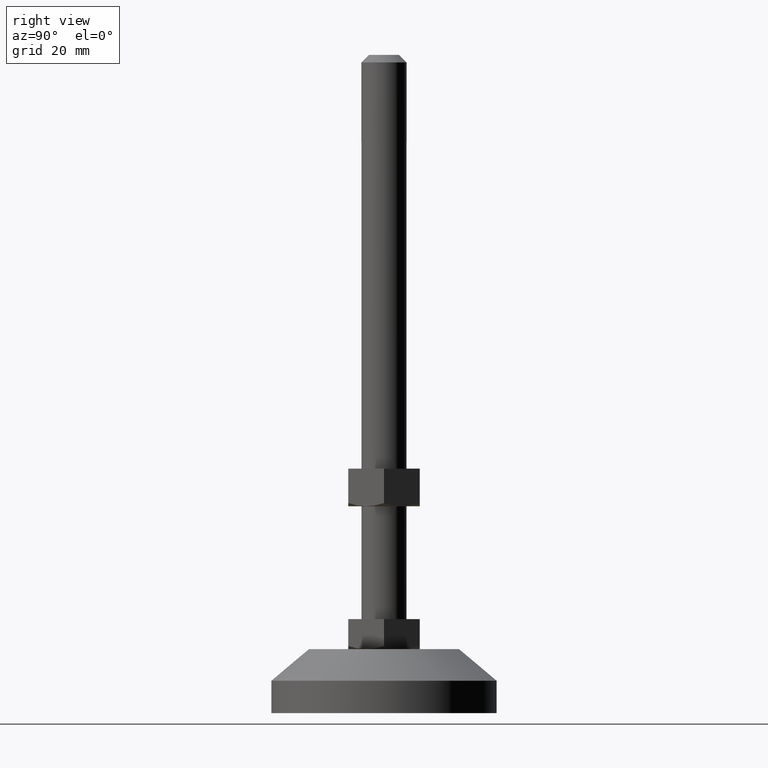
[diagram: clean part render]
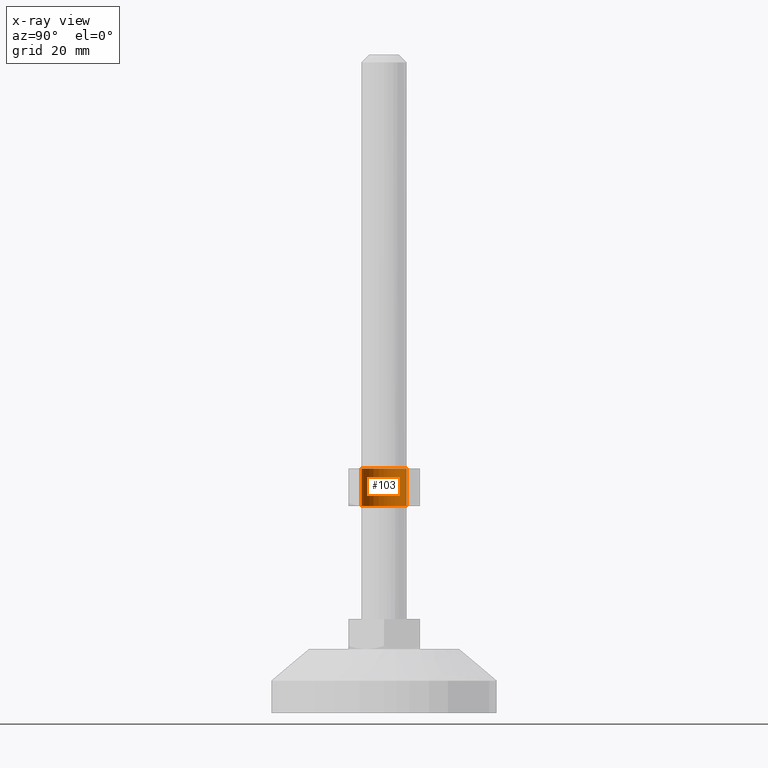
[diagram: x-ray — body ghosted, one internal face saturated and labeled with its STEP entity id]
A machine part, right view, then the same camera in x-ray: the body is ghosted and one INTERNAL B-rep face — a face not visible from any outside direction — is saturated and labeled: STEP entity #103.
In plain terms, the highlighted face is a freeform B-spline surface patch.
Its self-contained STEP definition (entity closure, byte-faithful):
#5=CARTESIAN_POINT('',(-0.470754574367073,-5.981504002398766,65.250000000000000));
#6=CARTESIAN_POINT('',(-6.452258576765839,-5.510749428031692,65.250000000000000));
#7=CARTESIAN_POINT('',(-5.981504002398766,0.470754574367073,65.250000000000000));
#8=CARTESIAN_POINT('',(-5.510749428031692,6.452258576765839,65.250000000000000));
#9=CARTESIAN_POINT('',(0.470754574367073,5.981504002398766,65.250000000000000));
#10=CARTESIAN_POINT('',(-0.470754574367073,-5.981504002398766,54.743749999999991));
#11=CARTESIAN_POINT('',(-6.452258576765839,-5.510749428031692,54.743749999999999));
#12=CARTESIAN_POINT('',(-5.981504002398766,0.470754574367073,54.743749999999991));
#13=CARTESIAN_POINT('',(-5.510749428031692,6.452258576765839,54.743749999999999));
#14=CARTESIAN_POINT('',(0.470754574367073,5.981504002398766,54.743749999999991));
#22=(BOUNDED_SURFACE()B_SPLINE_SURFACE(2,1,((#5,#10),(#6,#11),(#7,#12),(#8,#13),(#9,#14)),.UNSPECIFIED.,.F.,.F.,.U.)B_SPLINE_SURFACE_WITH_KNOTS((3,2,3),(2,2),(0.0,9.941125496954280,19.882250993908560),(0.0,10.506250000000010),.UNSPECIFIED.)GEOMETRIC_REPRESENTATION_ITEM()RATIONAL_B_SPLINE_SURFACE(((1.0,1.0),(0.707106781186548,0.707106781186548),(1.0,1.0),(0.707106781186548,0.707106781186548),(1.0,1.0)))REPRESENTATION_ITEM('')SURFACE());
#23=CARTESIAN_POINT('',(-6.0,0.0,65.0));
#24=VERTEX_POINT('',#23);
#25=CARTESIAN_POINT('',(-0.470754574491639,-5.981504002388963,65.0));
#26=VERTEX_POINT('',#25);
#27=CARTESIAN_POINT('',(-6.0,0.0,65.0));
#28=CARTESIAN_POINT('',(-6.0,-5.546342949833379,65.0));
#29=CARTESIAN_POINT('',(-0.470754574491639,-5.981504002388966,65.000000000000014));
#37=(BOUNDED_CURVE()B_SPLINE_CURVE(2,(#27,#28,#29),.UNSPECIFIED.,.F.,.U.)B_SPLINE_CURVE_WITH_KNOTS((3,3),(0.0,0.236331300629197),.UNSPECIFIED.)CURVE()GEOMETRIC_REPRESENTATION_ITEM()RATIONAL_B_SPLINE_CURVE((1.0,0.723120658609379,0.969723356164365))REPRESENTATION_ITEM(''));
#38=EDGE_CURVE('',#24,#26,#37,.T.);
#39=ORIENTED_EDGE('',*,*,#38,.T.);
#40=CARTESIAN_POINT('',(-0.470754574491640,-5.981504002388963,55.0));
#41=VERTEX_POINT('',#40);
#42=CARTESIAN_POINT('',(-0.470754574491639,-5.981504002388963,65.0));
#43=CARTESIAN_POINT('',(-0.470754574491640,-5.981504002388963,55.0));
#44=QUASI_UNIFORM_CURVE('',1,(#42,#43),.UNSPECIFIED.,.F.,.U.);
#45=EDGE_CURVE('',#26,#41,#44,.T.);
#46=ORIENTED_EDGE('',*,*,#45,.T.);
#47=CARTESIAN_POINT('',(-6.0,0.0,55.0));
#48=VERTEX_POINT('',#47);
#49=CARTESIAN_POINT('',(-6.0,0.0,55.0));
#50=CARTESIAN_POINT('',(-6.000000000000001,-5.546342949833377,55.0));
#51=CARTESIAN_POINT('',(-0.470754574491641,-5.981504002388963,55.0));
#59=(BOUNDED_CURVE()B_SPLINE_CURVE(2,(#49,#50,#51),.UNSPECIFIED.,.F.,.U.)B_SPLINE_CURVE_WITH_KNOTS((3,3),(0.0,0.236331300629197),.UNSPECIFIED.)CURVE()GEOMETRIC_REPRESENTATION_ITEM()RATIONAL_B_SPLINE_CURVE((1.0,0.723120658609379,0.969723356164365))REPRESENTATION_ITEM(''));
#60=EDGE_CURVE('',#48,#41,#59,.T.);
#61=ORIENTED_EDGE('',*,*,#60,.F.);
#62=CARTESIAN_POINT('',(0.470754574491639,5.981504002388963,55.0));
#63=VERTEX_POINT('',#62);
#64=CARTESIAN_POINT('',(0.470754574491640,5.981504002388966,55.000000000000007));
#65=CARTESIAN_POINT('',(0.235740642108592,6.0,55.0));
#66=CARTESIAN_POINT('',(0.0,6.0,55.0));
#67=CARTESIAN_POINT('',(-6.0,6.0,55.000000000000007));
#68=CARTESIAN_POINT('',(-6.0,0.0,55.0));
#76=(BOUNDED_CURVE()B_SPLINE_CURVE(2,(#64,#65,#66,#67,#68),.UNSPECIFIED.,.F.,.U.)B_SPLINE_CURVE_WITH_KNOTS((3,2,3),(0.736331300629197,0.750000000000000,1.0),.UNSPECIFIED.)CURVE()GEOMETRIC_REPRESENTATION_ITEM()RATIONAL_B_SPLINE_CURVE((0.969723356164365,0.983986122577168,1.0,0.707106781186548,1.0))REPRESENTATION_ITEM(''));
#77=EDGE_CURVE('',#63,#48,#76,.T.);
#78=ORIENTED_EDGE('',*,*,#77,.F.);
#79=CARTESIAN_POINT('',(0.470754574491641,5.981504002388963,65.0));
#80=VERTEX_POINT('',#79);
#81=CARTESIAN_POINT('',(0.470754574491641,5.981504002388963,65.0));
#82=CARTESIAN_POINT('',(0.470754574491639,5.981504002388963,55.0));
#83=QUASI_UNIFORM_CURVE('',1,(#81,#82),.UNSPECIFIED.,.F.,.U.);
#84=EDGE_CURVE('',#80,#63,#83,.T.);
#85=ORIENTED_EDGE('',*,*,#84,.F.);
#86=CARTESIAN_POINT('',(0.470754574491640,5.981504002388966,65.000000000000014));
#87=CARTESIAN_POINT('',(0.235740642108592,6.0,65.0));
#88=CARTESIAN_POINT('',(0.0,6.0,65.0));
#89=CARTESIAN_POINT('',(-6.0,6.0,65.0));
#90=CARTESIAN_POINT('',(-6.0,0.0,65.0));
#98=(BOUNDED_CURVE()B_SPLINE_CURVE(2,(#86,#87,#88,#89,#90),.UNSPECIFIED.,.F.,.U.)B_SPLINE_CURVE_WITH_KNOTS((3,2,3),(0.736331300629197,0.750000000000000,1.0),.UNSPECIFIED.)CURVE()GEOMETRIC_REPRESENTATION_ITEM()RATIONAL_B_SPLINE_CURVE((0.969723356164365,0.983986122577168,1.0,0.707106781186548,1.0))REPRESENTATION_ITEM(''));
#99=EDGE_CURVE('',#80,#24,#98,.T.);
#100=ORIENTED_EDGE('',*,*,#99,.T.);
#101=EDGE_LOOP('',(#39,#46,#61,#78,#85,#100));
#102=FACE_OUTER_BOUND('',#101,.T.);
#103=ADVANCED_FACE('',(#102),#22,.F.);